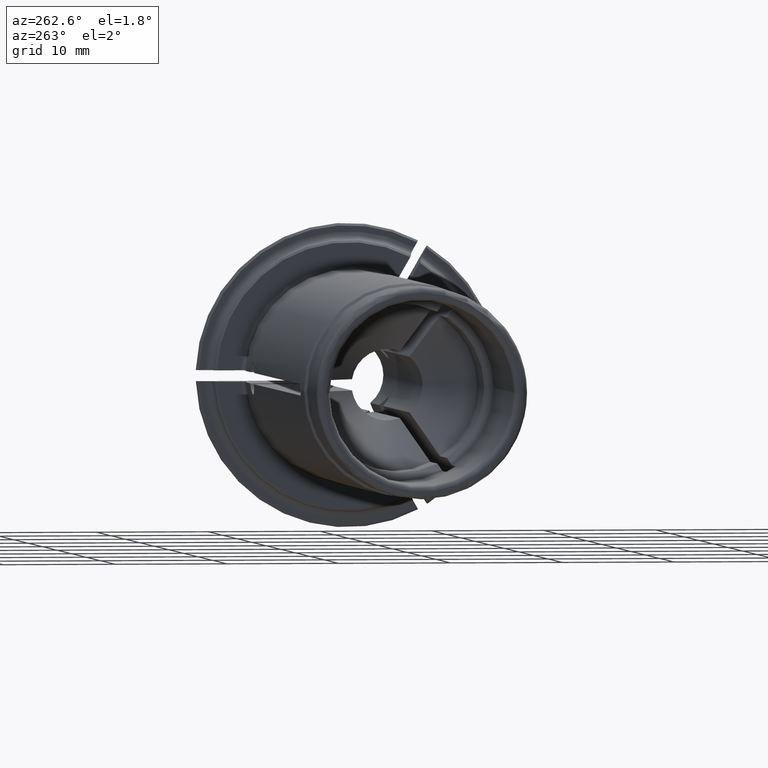
[diagram: clean part render]
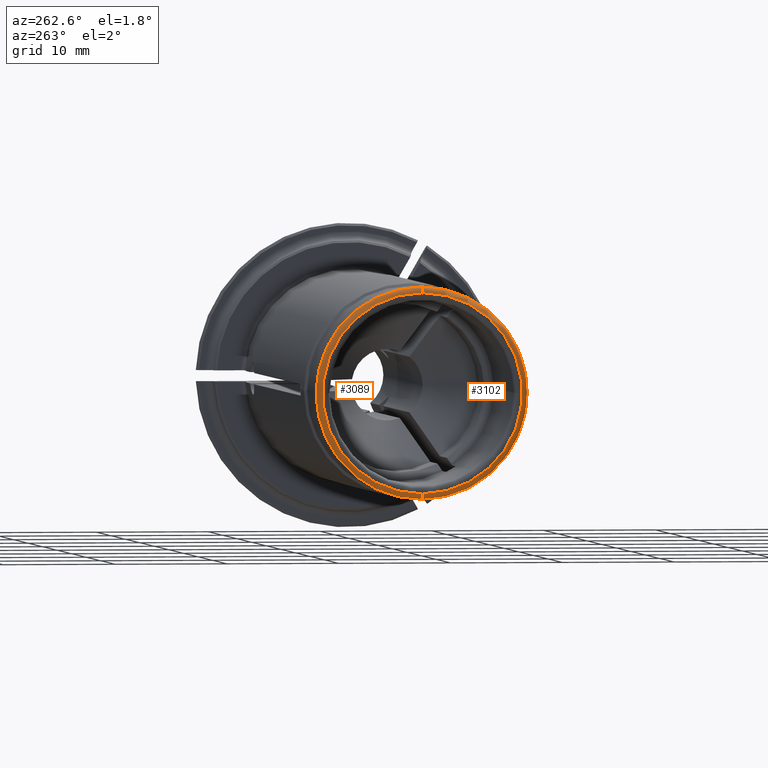
[diagram: same view with one multi-face feature highlighted, each face labeled with its STEP entity id]
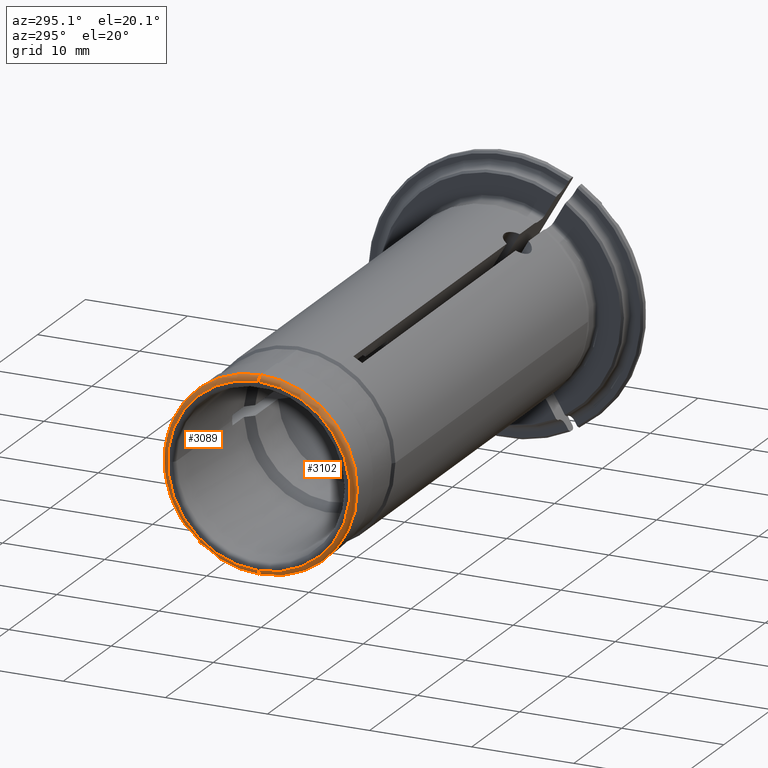
[diagram: same view with one multi-face feature highlighted, each face labeled with its STEP entity id]
A machine part, auxiliary view. The highlighted faces form ONE feature: a constant-radius fillet chain: 2 tangent blend faces with common blend radius 0.5 mm. The faces share edges in the B-rep.
A second angle (auxiliary view) of the same feature is appended — it is thin or edge-on in the first view.
Their STEP definitions:
[1] entity #3089 (Torus):
#1423=CARTESIAN_POINT('',(-5.05E1,0.E0,0.E0));
#1424=DIRECTION('',(-1.E0,0.E0,0.E0));
#1425=DIRECTION('',(0.E0,0.E0,1.E0));
#1426=AXIS2_PLACEMENT_3D('',#1423,#1424,#1425);
#1438=CARTESIAN_POINT('',(-5.E1,0.E0,8.925E0));
#1439=DIRECTION('',(0.E0,1.E0,0.E0));
#1440=DIRECTION('',(-1.E0,0.E0,0.E0));
#1441=AXIS2_PLACEMENT_3D('',#1438,#1439,#1440);
#1443=CARTESIAN_POINT('',(-5.E1,0.E0,-8.925E0));
#1444=DIRECTION('',(0.E0,-1.E0,0.E0));
#1445=DIRECTION('',(-1.E0,0.E0,1.065814103640E-14));
#1446=AXIS2_PLACEMENT_3D('',#1443,#1444,#1445);
#1466=CARTESIAN_POINT('',(-5.E1,0.E0,0.E0));
#1467=DIRECTION('',(-1.E0,0.E0,0.E0));
#1468=DIRECTION('',(0.E0,0.E0,1.E0));
#1469=AXIS2_PLACEMENT_3D('',#1466,#1467,#1468);
#1887=CARTESIAN_POINT('',(-5.05E1,0.E0,8.925E0));
#1888=CARTESIAN_POINT('',(-5.05E1,0.E0,-8.925E0));
#1889=VERTEX_POINT('',#1887);
#1890=VERTEX_POINT('',#1888);
#1891=CARTESIAN_POINT('',(-5.E1,0.E0,9.425E0));
#1892=CARTESIAN_POINT('',(-5.E1,0.E0,-9.425E0));
#1893=VERTEX_POINT('',#1891);
#1894=VERTEX_POINT('',#1892);
#3075=CARTESIAN_POINT('',(-5.E1,0.E0,0.E0));
#3076=DIRECTION('',(1.E0,0.E0,0.E0));
#3077=DIRECTION('',(0.E0,-1.504420519508E-2,9.998868295412E-1));
#3078=AXIS2_PLACEMENT_3D('',#3075,#3076,#3077);
#3079=TOROIDAL_SURFACE('',#3078,8.925E0,5.E-1);
#3080=ORIENTED_EDGE('',*,*,#3051,.T.);
#3082=ORIENTED_EDGE('',*,*,#3081,.T.);
#3084=ORIENTED_EDGE('',*,*,#3083,.F.);
#3086=ORIENTED_EDGE('',*,*,#3085,.F.);
#3087=EDGE_LOOP('',(#3080,#3082,#3084,#3086));
#3088=FACE_OUTER_BOUND('',#3087,.F.);
#3089=ADVANCED_FACE('',(#3088),#3079,.T.);
#1427=CIRCLE('',#1426,8.925E0);
#1442=CIRCLE('',#1441,5.E-1);
#1447=CIRCLE('',#1446,5.E-1);
#1470=CIRCLE('',#1469,9.425E0);
#3051=EDGE_CURVE('',#1889,#1890,#1427,.T.);
#3081=EDGE_CURVE('',#1890,#1894,#1447,.T.);
#3083=EDGE_CURVE('',#1893,#1894,#1470,.T.);
#3085=EDGE_CURVE('',#1889,#1893,#1442,.T.);
[2] entity #3102 (Torus):
#1428=CARTESIAN_POINT('',(-5.05E1,0.E0,0.E0));
#1429=DIRECTION('',(-1.E0,0.E0,0.E0));
#1430=DIRECTION('',(0.E0,0.E0,-1.E0));
#1431=AXIS2_PLACEMENT_3D('',#1428,#1429,#1430);
#1438=CARTESIAN_POINT('',(-5.E1,0.E0,8.925E0));
#1439=DIRECTION('',(0.E0,1.E0,0.E0));
#1440=DIRECTION('',(-1.E0,0.E0,0.E0));
#1441=AXIS2_PLACEMENT_3D('',#1438,#1439,#1440);
#1443=CARTESIAN_POINT('',(-5.E1,0.E0,-8.925E0));
#1444=DIRECTION('',(0.E0,-1.E0,0.E0));
#1445=DIRECTION('',(-1.E0,0.E0,1.065814103640E-14));
#1446=AXIS2_PLACEMENT_3D('',#1443,#1444,#1445);
#1448=CARTESIAN_POINT('',(-5.E1,0.E0,0.E0));
#1449=DIRECTION('',(-1.E0,0.E0,0.E0));
#1450=DIRECTION('',(0.E0,0.E0,-1.E0));
#1451=AXIS2_PLACEMENT_3D('',#1448,#1449,#1450);
#1887=CARTESIAN_POINT('',(-5.05E1,0.E0,8.925E0));
#1888=CARTESIAN_POINT('',(-5.05E1,0.E0,-8.925E0));
#1889=VERTEX_POINT('',#1887);
#1890=VERTEX_POINT('',#1888);
#1891=CARTESIAN_POINT('',(-5.E1,0.E0,9.425E0));
#1892=CARTESIAN_POINT('',(-5.E1,0.E0,-9.425E0));
#1893=VERTEX_POINT('',#1891);
#1894=VERTEX_POINT('',#1892);
#3090=CARTESIAN_POINT('',(-5.E1,0.E0,0.E0));
#3091=DIRECTION('',(1.E0,0.E0,0.E0));
#3092=DIRECTION('',(0.E0,1.504420519508E-2,-9.998868295412E-1));
#3093=AXIS2_PLACEMENT_3D('',#3090,#3091,#3092);
#3094=TOROIDAL_SURFACE('',#3093,8.925E0,5.E-1);
#3095=ORIENTED_EDGE('',*,*,#3053,.T.);
#3096=ORIENTED_EDGE('',*,*,#3085,.T.);
#3098=ORIENTED_EDGE('',*,*,#3097,.F.);
#3099=ORIENTED_EDGE('',*,*,#3081,.F.);
#3100=EDGE_LOOP('',(#3095,#3096,#3098,#3099));
#3101=FACE_OUTER_BOUND('',#3100,.F.);
#3102=ADVANCED_FACE('',(#3101),#3094,.T.);
#1432=CIRCLE('',#1431,8.925E0);
#1442=CIRCLE('',#1441,5.E-1);
#1447=CIRCLE('',#1446,5.E-1);
#1452=CIRCLE('',#1451,9.425E0);
#3053=EDGE_CURVE('',#1890,#1889,#1432,.T.);
#3081=EDGE_CURVE('',#1890,#1894,#1447,.T.);
#3085=EDGE_CURVE('',#1889,#1893,#1442,.T.);
#3097=EDGE_CURVE('',#1894,#1893,#1452,.T.);